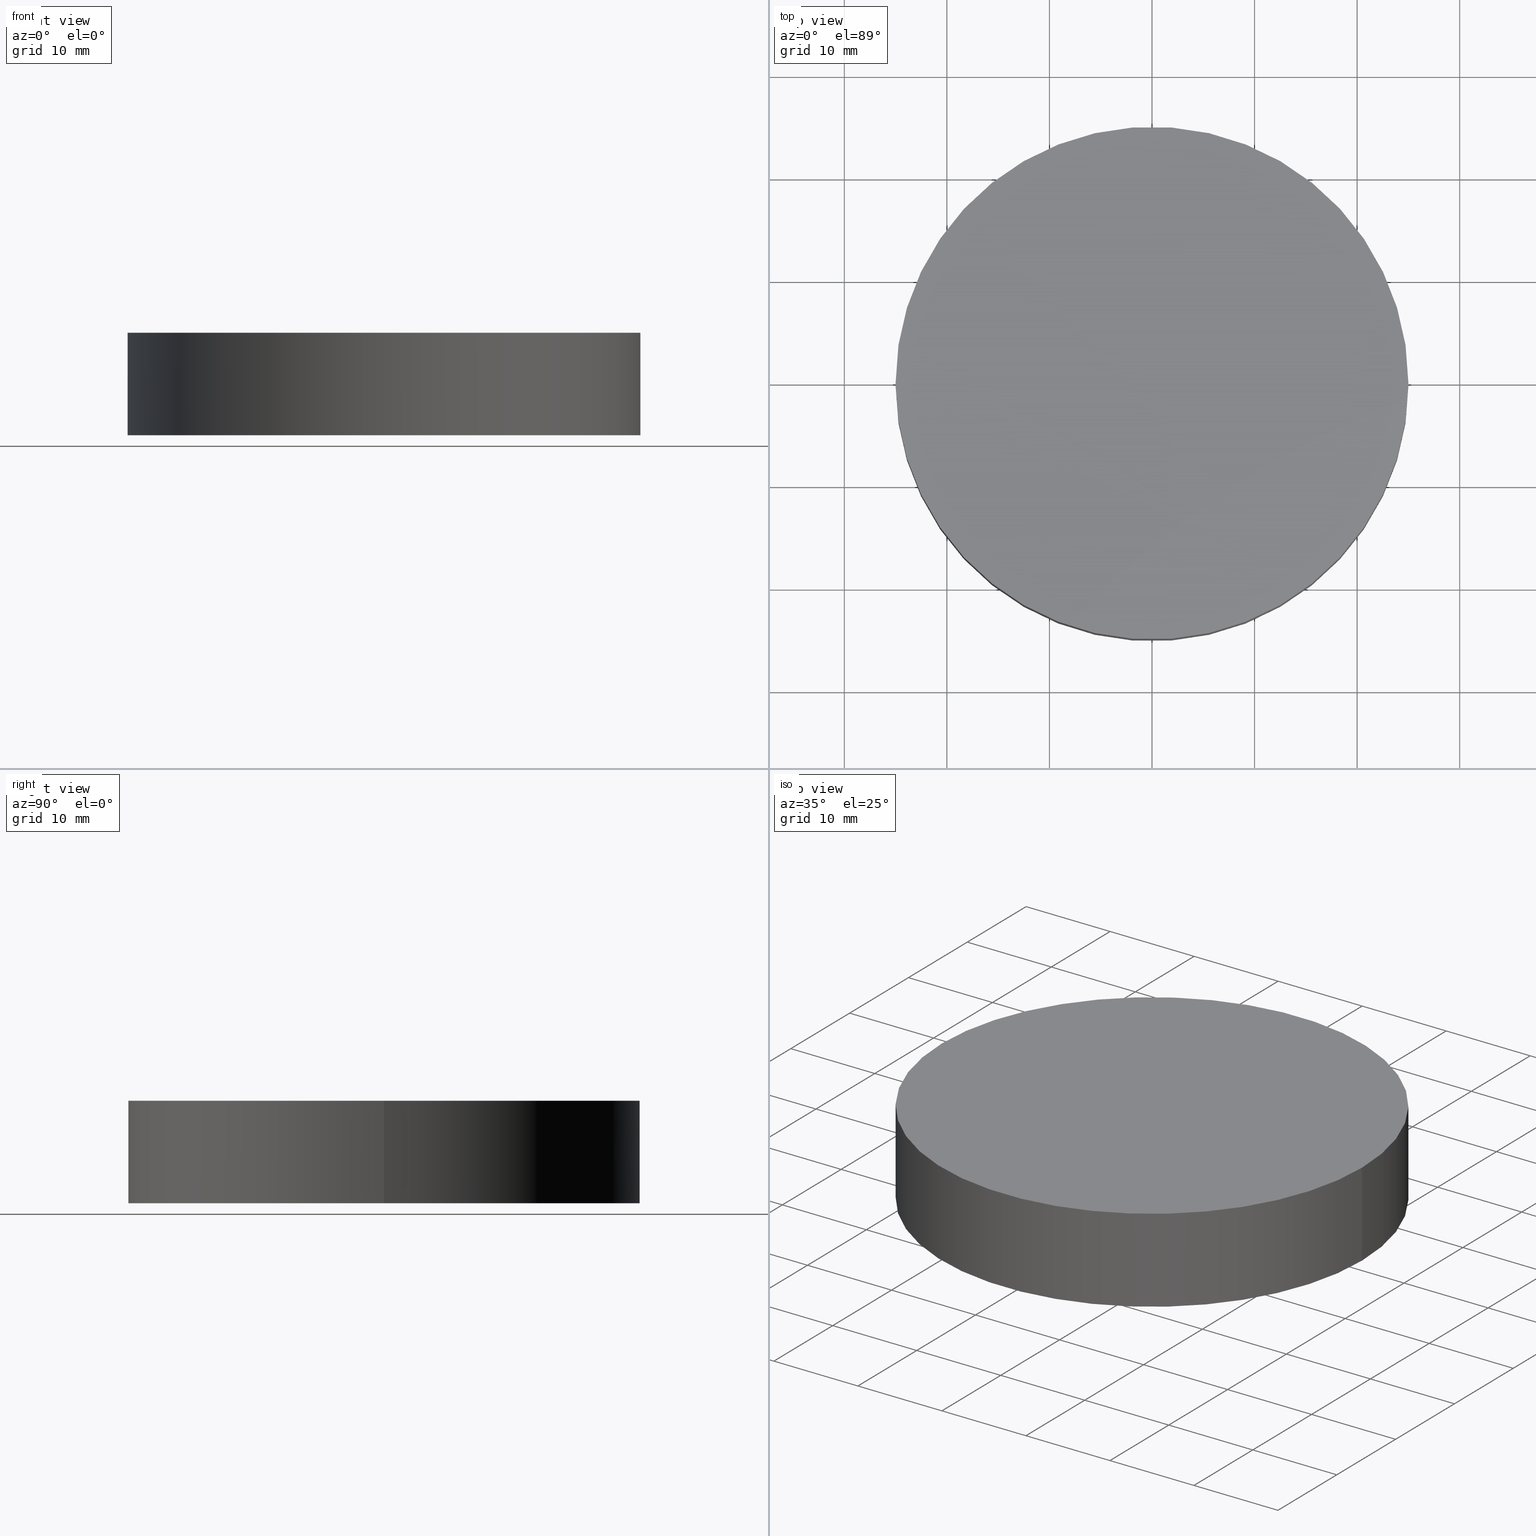
[diagram: canonical four-view strip — front | top / right | iso, engineering-drawing reading convention]
A machine part, canonical four-view strip (front | top / right | iso — engineering-drawing reading convention). The complete STEP part file that produces these views, byte-faithful:
ISO-10303-21;
HEADER;
FILE_DESCRIPTION (( 'STEP AP214' ),
    '1' );
FILE_NAME ('185009.STEP',
    '2019-07-12T01:53:18',
    ( 'user' ),
    ( '΢���й�' ),
    'SwSTEP 2.0',
    'SolidWorks 2016',
    '' );
FILE_SCHEMA (( 'AUTOMOTIVE_DESIGN' ));
ENDSEC;

DATA;
#1 = DIRECTION ( 'NONE',  ( 1.000000000000000000, 0.0000000000000000000, -0.0000000000000000000 ) ) ;
#2 = PRESENTATION_LAYER_ASSIGNMENT (  '', '', ( #61 ) ) ;
#3 = VERTEX_POINT ( 'NONE', #129 ) ;
#4 = EDGE_CURVE ( 'NONE', #71, #3, #39, .T. ) ;
#5 = CIRCLE ( 'NONE', #108, 25.00000000000000000 ) ;
#6 = SURFACE_STYLE_FILL_AREA ( #68 ) ;
#7 = DIRECTION ( 'NONE',  ( 0.0000000000000000000, 0.0000000000000000000, 1.000000000000000000 ) ) ;
#8 = DIRECTION ( 'NONE',  ( 0.0000000000000000000, 0.0000000000000000000, 1.000000000000000000 ) ) ;
#9 = PRODUCT_DEFINITION_CONTEXT ( 'detailed design', #13, 'design' ) ;
#10 = PLANE ( 'NONE',  #110 ) ;
#11 = MECHANICAL_DESIGN_GEOMETRIC_PRESENTATION_REPRESENTATION (  '', ( #61 ), #44 ) ;
#12 = ORIENTED_EDGE ( 'NONE', *, *, #113, .T. ) ;
#13 = APPLICATION_CONTEXT ( 'automotive_design' ) ;
#14 = CYLINDRICAL_SURFACE ( 'NONE', #86, 25.00000000000000000 ) ;
#15 = COLOUR_RGB ( '',1.000000000000000000, 1.000000000000000000, 1.000000000000000000 ) ;
#16 = AXIS2_PLACEMENT_3D ( 'NONE', #30, #8, #55 ) ;
#17 = DIRECTION ( 'NONE',  ( 1.000000000000000000, 0.0000000000000000000, 0.0000000000000000000 ) ) ;
#18 = DIRECTION ( 'NONE',  ( 0.0000000000000000000, 0.0000000000000000000, 1.000000000000000000 ) ) ;
#19 = CARTESIAN_POINT ( 'NONE',  ( 0.0000000000000000000, 0.0000000000000000000, 0.0000000000000000000 ) ) ;
#20 = DIRECTION ( 'NONE',  ( -1.000000000000000000, 0.0000000000000000000, 0.0000000000000000000 ) ) ;
#21 = PRESENTATION_STYLE_ASSIGNMENT (( #64 ) ) ;
#22 = PRODUCT_DEFINITION ( 'δ֪', '', #29, #9 ) ;
#23 = LINE ( 'NONE', #126, #32 ) ;
#24 = FACE_OUTER_BOUND ( 'NONE', #82, .T. ) ;
#25 = CARTESIAN_POINT ( 'NONE',  ( 0.0000000000000000000, 0.0000000000000000000, 10.00000000000000000 ) ) ;
#26 = ADVANCED_BREP_SHAPE_REPRESENTATION ( '185009', ( #97, #16 ), #31 ) ;
#27 = AXIS2_PLACEMENT_3D ( 'NONE', #48, #123, #121 ) ;
#28 = ORIENTED_EDGE ( 'NONE', *, *, #113, .F. ) ;
#29 = PRODUCT_DEFINITION_FORMATION_WITH_SPECIFIED_SOURCE ( '�κ�', '', #99, .NOT_KNOWN. ) ;
#30 = CARTESIAN_POINT ( 'NONE',  ( 0.0000000000000000000, 0.0000000000000000000, 0.0000000000000000000 ) ) ;
#31 =( GEOMETRIC_REPRESENTATION_CONTEXT ( 3 ) GLOBAL_UNCERTAINTY_ASSIGNED_CONTEXT ( ( #46 ) ) GLOBAL_UNIT_ASSIGNED_CONTEXT ( ( #96, #95, #88 ) ) REPRESENTATION_CONTEXT ( 'NONE', 'WORKASPACE' ) );
#32 = VECTOR ( 'NONE', #49, 1000.000000000000000 ) ;
#33 = SURFACE_STYLE_USAGE ( .BOTH. , #140 ) ;
#34 = DIRECTION ( 'NONE',  ( 0.0000000000000000000, 0.0000000000000000000, 1.000000000000000000 ) ) ;
#35 = ORIENTED_EDGE ( 'NONE', *, *, #117, .F. ) ;
#36 = PRODUCT_RELATED_PRODUCT_CATEGORY ( 'part', '', ( #99 ) ) ;
#37 = FACE_OUTER_BOUND ( 'NONE', #73, .T. ) ;
#38 = ADVANCED_FACE ( 'NONE', ( #101 ), #85, .T. ) ;
#39 = CIRCLE ( 'NONE', #27, 25.00000000000000000 ) ;
#40 = DIRECTION ( 'NONE',  ( 1.000000000000000000, 0.0000000000000000000, 0.0000000000000000000 ) ) ;
#41 = CARTESIAN_POINT ( 'NONE',  ( 0.0000000000000000000, 0.0000000000000000000, 10.00000000000000000 ) ) ;
#42 = FILL_AREA_STYLE_COLOUR ( '', #76 ) ;
#43 = VECTOR ( 'NONE', #94, 1000.000000000000000 ) ;
#44 =( GEOMETRIC_REPRESENTATION_CONTEXT ( 3 ) GLOBAL_UNCERTAINTY_ASSIGNED_CONTEXT ( ( #66 ) ) GLOBAL_UNIT_ASSIGNED_CONTEXT ( ( #63, #57, #52 ) ) REPRESENTATION_CONTEXT ( 'NONE', 'WORKASPACE' ) );
#45 = ORIENTED_EDGE ( 'NONE', *, *, #103, .F. ) ;
#46 = UNCERTAINTY_MEASURE_WITH_UNIT (LENGTH_MEASURE( 1.000000000000000100E-005 ), #96, 'distance_accuracy_value', 'NONE');
#47 = ORIENTED_EDGE ( 'NONE', *, *, #117, .T. ) ;
#48 = CARTESIAN_POINT ( 'NONE',  ( 0.0000000000000000000, 0.0000000000000000000, 10.00000000000000000 ) ) ;
#49 = DIRECTION ( 'NONE',  ( -0.0000000000000000000, -0.0000000000000000000, -1.000000000000000000 ) ) ;
#50 = ORIENTED_EDGE ( 'NONE', *, *, #103, .T. ) ;
#51 = VERTEX_POINT ( 'NONE', #132 ) ;
#52 =( NAMED_UNIT ( * ) SI_UNIT ( $, .STERADIAN. ) SOLID_ANGLE_UNIT ( ) );
#53 = AXIS2_PLACEMENT_3D ( 'NONE', #41, #34, #40 ) ;
#54 = ORIENTED_EDGE ( 'NONE', *, *, #4, .F. ) ;
#55 = DIRECTION ( 'NONE',  ( 1.000000000000000000, 0.0000000000000000000, 0.0000000000000000000 ) ) ;
#56 = PRESENTATION_STYLE_ASSIGNMENT (( #33 ) ) ;
#57 =( NAMED_UNIT ( * ) PLANE_ANGLE_UNIT ( ) SI_UNIT ( $, .RADIAN. ) );
#58 =( NAMED_UNIT ( * ) SI_UNIT ( $, .STERADIAN. ) SOLID_ANGLE_UNIT ( ) );
#59 = ORIENTED_EDGE ( 'NONE', *, *, #60, .F. ) ;
#60 = EDGE_CURVE ( 'NONE', #3, #138, #67, .T. ) ;
#61 = STYLED_ITEM ( 'NONE', ( #21 ), #97 ) ;
#62 = EDGE_CURVE ( 'NONE', #51, #138, #124, .T. ) ;
#63 =( LENGTH_UNIT ( ) NAMED_UNIT ( * ) SI_UNIT ( .MILLI., .METRE. ) );
#64 = SURFACE_STYLE_USAGE ( .BOTH. , #65 ) ;
#65 = SURFACE_SIDE_STYLE ('',( #6 ) ) ;
#66 = UNCERTAINTY_MEASURE_WITH_UNIT (LENGTH_MEASURE( 1.000000000000000100E-005 ), #63, 'distance_accuracy_value', 'NONE');
#67 = LINE ( 'NONE', #83, #43 ) ;
#68 = FILL_AREA_STYLE ('',( #78 ) ) ;
#69 = CARTESIAN_POINT ( 'NONE',  ( 25.00000000000000000, 3.061616997868383000E-015, 0.0000000000000000000 ) ) ;
#70 = PRODUCT_DEFINITION_SHAPE ( 'NONE', 'NONE',  #22 ) ;
#71 = VERTEX_POINT ( 'NONE', #93 ) ;
#72 =( LENGTH_UNIT ( ) NAMED_UNIT ( * ) SI_UNIT ( .MILLI., .METRE. ) );
#73 = EDGE_LOOP ( 'NONE', ( #107, #35 ) ) ;
#74 = AXIS2_PLACEMENT_3D ( 'NONE', #87, #84, #81 ) ;
#75 = ADVANCED_FACE ( 'NONE', ( #24 ), #77, .T. ) ;
#76 = COLOUR_RGB ( '',1.000000000000000000, 1.000000000000000000, 1.000000000000000000 ) ;
#77 = CYLINDRICAL_SURFACE ( 'NONE', #116, 25.00000000000000000 ) ;
#78 = FILL_AREA_STYLE_COLOUR ( '', #15 ) ;
#79 = DIRECTION ( 'NONE',  ( -0.0000000000000000000, -0.0000000000000000000, -1.000000000000000000 ) ) ;
#80 = APPLICATION_PROTOCOL_DEFINITION ( 'draft international standard', 'automotive_design', 1998, #13 ) ;
#81 = DIRECTION ( 'NONE',  ( 1.000000000000000000, 0.0000000000000000000, 0.0000000000000000000 ) ) ;
#82 = EDGE_LOOP ( 'NONE', ( #59, #54, #12, #109 ) ) ;
#83 = CARTESIAN_POINT ( 'NONE',  ( 25.00000000000000000, 3.061616997868383000E-015, 10.00000000000000000 ) ) ;
#84 = DIRECTION ( 'NONE',  ( 0.0000000000000000000, 0.0000000000000000000, 1.000000000000000000 ) ) ;
#85 = PLANE ( 'NONE',  #127 ) ;
#86 = AXIS2_PLACEMENT_3D ( 'NONE', #25, #79, #20 ) ;
#87 = CARTESIAN_POINT ( 'NONE',  ( 0.0000000000000000000, 0.0000000000000000000, 0.0000000000000000000 ) ) ;
#88 =( NAMED_UNIT ( * ) SI_UNIT ( $, .STERADIAN. ) SOLID_ANGLE_UNIT ( ) );
#89 = DIRECTION ( 'NONE',  ( -1.000000000000000000, 0.0000000000000000000, 0.0000000000000000000 ) ) ;
#90 = APPLICATION_CONTEXT ( 'automotive_design' ) ;
#91 = CARTESIAN_POINT ( 'NONE',  ( 0.0000000000000000000, 0.0000000000000000000, 10.00000000000000000 ) ) ;
#92 = ORIENTED_EDGE ( 'NONE', *, *, #60, .T. ) ;
#93 = CARTESIAN_POINT ( 'NONE',  ( -25.00000000000000000, 0.0000000000000000000, 10.00000000000000000 ) ) ;
#94 = DIRECTION ( 'NONE',  ( -0.0000000000000000000, -0.0000000000000000000, -1.000000000000000000 ) ) ;
#95 =( NAMED_UNIT ( * ) PLANE_ANGLE_UNIT ( ) SI_UNIT ( $, .RADIAN. ) );
#96 =( LENGTH_UNIT ( ) NAMED_UNIT ( * ) SI_UNIT ( .MILLI., .METRE. ) );
#97 = MANIFOLD_SOLID_BREP ( '͹̨-����1', #100 ) ;
#98 = EDGE_LOOP ( 'NONE', ( #122, #50 ) ) ;
#99 = PRODUCT ( '185009', '185009', '', ( #128 ) ) ;
#100 = CLOSED_SHELL ( 'NONE', ( #125, #75, #38, #134 ) ) ;
#101 = FACE_OUTER_BOUND ( 'NONE', #98, .T. ) ;
#102 = SURFACE_STYLE_FILL_AREA ( #114 ) ;
#103 = EDGE_CURVE ( 'NONE', #3, #71, #115, .T. ) ;
#104 = CARTESIAN_POINT ( 'NONE',  ( 0.0000000000000000000, 0.0000000000000000000, 0.0000000000000000000 ) ) ;
#105 = APPLICATION_PROTOCOL_DEFINITION ( 'draft international standard', 'automotive_design', 1998, #90 ) ;
#106 = STYLED_ITEM ( 'NONE', ( #56 ), #26 ) ;
#107 = ORIENTED_EDGE ( 'NONE', *, *, #62, .F. ) ;
#108 = AXIS2_PLACEMENT_3D ( 'NONE', #19, #18, #17 ) ;
#109 = ORIENTED_EDGE ( 'NONE', *, *, #62, .T. ) ;
#110 = AXIS2_PLACEMENT_3D ( 'NONE', #104, #7, #1 ) ;
#111 = DIRECTION ( 'NONE',  ( -0.0000000000000000000, -0.0000000000000000000, -1.000000000000000000 ) ) ;
#112 = PRESENTATION_LAYER_ASSIGNMENT (  '', '', ( #106 ) ) ;
#113 = EDGE_CURVE ( 'NONE', #71, #51, #23, .T. ) ;
#114 = FILL_AREA_STYLE ('',( #42 ) ) ;
#115 = CIRCLE ( 'NONE', #53, 25.00000000000000000 ) ;
#116 = AXIS2_PLACEMENT_3D ( 'NONE', #91, #111, #89 ) ;
#117 = EDGE_CURVE ( 'NONE', #138, #51, #5, .T. ) ;
#118 = MECHANICAL_DESIGN_GEOMETRIC_PRESENTATION_REPRESENTATION (  '', ( #106 ), #133 ) ;
#119 = DIRECTION ( 'NONE',  ( 1.000000000000000000, 0.0000000000000000000, -0.0000000000000000000 ) ) ;
#120 = DIRECTION ( 'NONE',  ( 0.0000000000000000000, 0.0000000000000000000, 1.000000000000000000 ) ) ;
#121 = DIRECTION ( 'NONE',  ( 1.000000000000000000, 0.0000000000000000000, 0.0000000000000000000 ) ) ;
#122 = ORIENTED_EDGE ( 'NONE', *, *, #4, .T. ) ;
#123 = DIRECTION ( 'NONE',  ( 0.0000000000000000000, 0.0000000000000000000, 1.000000000000000000 ) ) ;
#124 = CIRCLE ( 'NONE', #74, 25.00000000000000000 ) ;
#125 = ADVANCED_FACE ( 'NONE', ( #131 ), #14, .T. ) ;
#126 = CARTESIAN_POINT ( 'NONE',  ( -25.00000000000000000, 0.0000000000000000000, 10.00000000000000000 ) ) ;
#127 = AXIS2_PLACEMENT_3D ( 'NONE', #130, #120, #119 ) ;
#128 = PRODUCT_CONTEXT ( 'NONE', #90, 'mechanical' ) ;
#129 = CARTESIAN_POINT ( 'NONE',  ( 25.00000000000000000, 3.061616997868383000E-015, 10.00000000000000000 ) ) ;
#130 = CARTESIAN_POINT ( 'NONE',  ( 0.0000000000000000000, 0.0000000000000000000, 10.00000000000000000 ) ) ;
#131 = FACE_OUTER_BOUND ( 'NONE', #135, .T. ) ;
#132 = CARTESIAN_POINT ( 'NONE',  ( -25.00000000000000000, 0.0000000000000000000, 0.0000000000000000000 ) ) ;
#133 =( GEOMETRIC_REPRESENTATION_CONTEXT ( 3 ) GLOBAL_UNCERTAINTY_ASSIGNED_CONTEXT ( ( #137 ) ) GLOBAL_UNIT_ASSIGNED_CONTEXT ( ( #72, #136, #58 ) ) REPRESENTATION_CONTEXT ( 'NONE', 'WORKASPACE' ) );
#134 = ADVANCED_FACE ( 'NONE', ( #37 ), #10, .F. ) ;
#135 = EDGE_LOOP ( 'NONE', ( #45, #92, #47, #28 ) ) ;
#136 =( NAMED_UNIT ( * ) PLANE_ANGLE_UNIT ( ) SI_UNIT ( $, .RADIAN. ) );
#137 = UNCERTAINTY_MEASURE_WITH_UNIT (LENGTH_MEASURE( 1.000000000000000100E-005 ), #72, 'distance_accuracy_value', 'NONE');
#138 = VERTEX_POINT ( 'NONE', #69 ) ;
#139 = SHAPE_DEFINITION_REPRESENTATION ( #70, #26 ) ;
#140 = SURFACE_SIDE_STYLE ('',( #102 ) ) ;
ENDSEC;
END-ISO-10303-21;
